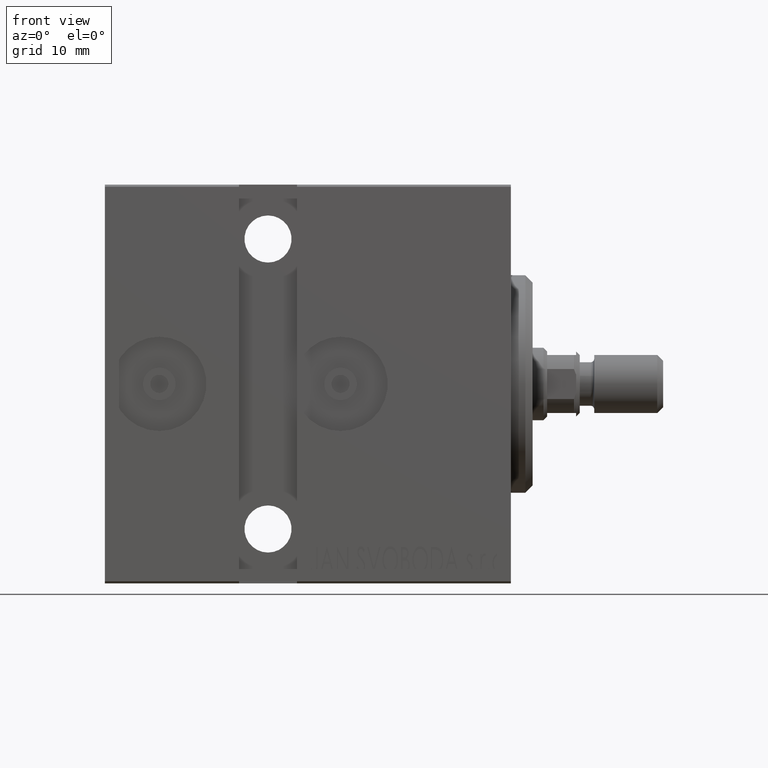
[diagram: clean part render]
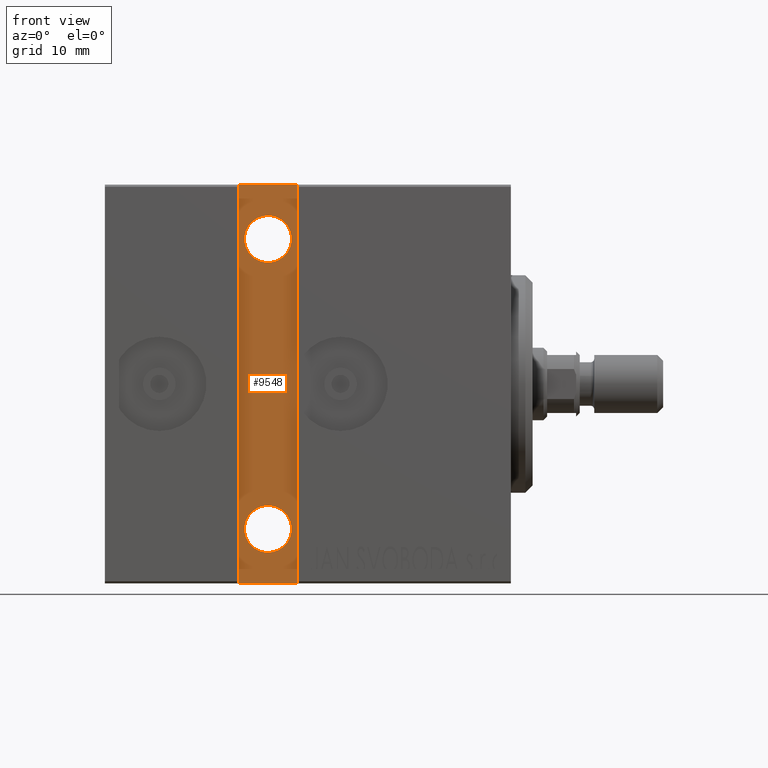
[diagram: same view with one face highlighted and labeled with its STEP entity id]
A machine part, front view. The second image highlights one B-rep face of the part: STEP entity #9548.
In plain terms, the highlighted planar face has unit normal (0, 1, 0).
Its self-contained STEP definition (entity closure, byte-faithful):
#280 = ORIENTED_EDGE ( 'NONE', *, *, #9360, .T. ) ;
#577 = VECTOR ( 'NONE', #40393, 1000.000000000000000 ) ;
#1015 = CARTESIAN_POINT ( 'NONE',  ( 33.50000000000000000, 15.50000000000000000, 16.75000000000000000 ) ) ;
#1501 = DIRECTION ( 'NONE',  ( 0.000000000000000000, -1.000000000000000000, 0.000000000000000000 ) ) ;
#1633 = CARTESIAN_POINT ( 'NONE',  ( 33.50000000000000000, 15.50000000000000000, 20.00000000000000000 ) ) ;
#2653 = LINE ( 'NONE', #12534, #32274 ) ;
#2664 = EDGE_CURVE ( 'NONE', #38430, #18440, #21687, .T. ) ;
#2860 = DIRECTION ( 'NONE',  ( 0.000000000000000000, -1.000000000000000000, 0.000000000000000000 ) ) ;
#3195 = EDGE_CURVE ( 'NONE', #33503, #27709, #39235, .T. ) ;
#3793 = ORIENTED_EDGE ( 'NONE', *, *, #3195, .T. ) ;
#4826 = CIRCLE ( 'NONE', #10444, 3.249999999999999556 ) ;
#5119 = EDGE_LOOP ( 'NONE', ( #8481, #280, #28954, #10003 ) ) ;
#5903 = DIRECTION ( 'NONE',  ( 0.000000000000000000, 0.000000000000000000, -1.000000000000000000 ) ) ;
#7247 = LINE ( 'NONE', #27445, #32682 ) ;
#7807 = AXIS2_PLACEMENT_3D ( 'NONE', #16470, #2860, #43261 ) ;
#8481 = ORIENTED_EDGE ( 'NONE', *, *, #33177, .T. ) ;
#9360 = EDGE_CURVE ( 'NONE', #20142, #40047, #2653, .T. ) ;
#9548 = ADVANCED_FACE ( 'NONE', ( #30091, #36899, #19759 ), #33166, .F. ) ;
#10003 = ORIENTED_EDGE ( 'NONE', *, *, #29694, .T. ) ;
#10444 = AXIS2_PLACEMENT_3D ( 'NONE', #23008, #12272, #5903 ) ;
#10598 = EDGE_CURVE ( 'NONE', #27709, #33503, #17569, .T. ) ;
#10895 = ORIENTED_EDGE ( 'NONE', *, *, #2664, .T. ) ;
#11954 = DIRECTION ( 'NONE',  ( 0.000000000000000000, 0.000000000000000000, -1.000000000000000000 ) ) ;
#12272 = DIRECTION ( 'NONE',  ( 0.000000000000000000, -1.000000000000000000, 0.000000000000000000 ) ) ;
#12534 = CARTESIAN_POINT ( 'NONE',  ( 37.50000000000000000, 15.50000000000000178, 27.50000000000002132 ) ) ;
#12687 = ORIENTED_EDGE ( 'NONE', *, *, #35856, .T. ) ;
#13108 = VECTOR ( 'NONE', #20134, 1000.000000000000000 ) ;
#13391 = CARTESIAN_POINT ( 'NONE',  ( 29.50000000000000000, 15.50000000000000178, -27.50000000000000711 ) ) ;
#13490 = DIRECTION ( 'NONE',  ( 0.000000000000000000, -1.000000000000000000, 0.000000000000000000 ) ) ;
#14377 = DIRECTION ( 'NONE',  ( 0.000000000000000000, -1.000000000000000000, 0.000000000000000000 ) ) ;
#14574 = CARTESIAN_POINT ( 'NONE',  ( 37.50000000000000000, 15.50000000000000355, -27.50000000000000355 ) ) ;
#16179 = AXIS2_PLACEMENT_3D ( 'NONE', #1633, #14377, #11954 ) ;
#16470 = CARTESIAN_POINT ( 'NONE',  ( 0.000000000000000000, 15.50000000000000178, 0.000000000000000000 ) ) ;
#17475 = EDGE_LOOP ( 'NONE', ( #10895, #12687 ) ) ;
#17569 = CIRCLE ( 'NONE', #16179, 3.249999999999999556 ) ;
#18440 = VERTEX_POINT ( 'NONE', #29956 ) ;
#18696 = DIRECTION ( 'NONE',  ( 1.000000000000000000, -0.000000000000000000, -0.000000000000000000 ) ) ;
#19165 = CARTESIAN_POINT ( 'NONE',  ( 33.50000000000000000, 15.50000000000000000, -16.75000000000000000 ) ) ;
#19759 = FACE_OUTER_BOUND ( 'NONE', #5119, .T. ) ;
#19907 = CARTESIAN_POINT ( 'NONE',  ( 37.49999999999999289, 15.50000000000000178, -27.50000000000000711 ) ) ;
#20134 = DIRECTION ( 'NONE',  ( -1.000000000000000000, 0.000000000000000000, 0.000000000000000000 ) ) ;
#20142 = VERTEX_POINT ( 'NONE', #36694 ) ;
#20924 = CARTESIAN_POINT ( 'NONE',  ( 33.50000000000000000, 15.50000000000000000, -20.00000000000000000 ) ) ;
#21199 = CARTESIAN_POINT ( 'NONE',  ( 29.50000000000000000, 15.50000000000000178, -27.50000000000000711 ) ) ;
#21687 = CIRCLE ( 'NONE', #41328, 3.249999999999999556 ) ;
#23008 = CARTESIAN_POINT ( 'NONE',  ( 33.50000000000000000, 15.50000000000000000, -20.00000000000000000 ) ) ;
#25247 = EDGE_LOOP ( 'NONE', ( #34318, #3793 ) ) ;
#27445 = CARTESIAN_POINT ( 'NONE',  ( 37.49999999999999289, 15.50000000000000178, -27.50000000000000711 ) ) ;
#27709 = VERTEX_POINT ( 'NONE', #28580 ) ;
#28580 = CARTESIAN_POINT ( 'NONE',  ( 33.50000000000000000, 15.50000000000000000, 23.25000000000000000 ) ) ;
#28695 = AXIS2_PLACEMENT_3D ( 'NONE', #41682, #1501, #38169 ) ;
#28954 = ORIENTED_EDGE ( 'NONE', *, *, #39804, .T. ) ;
#29694 = EDGE_CURVE ( 'NONE', #32681, #29799, #30461, .T. ) ;
#29799 = VERTEX_POINT ( 'NONE', #21199 ) ;
#29956 = CARTESIAN_POINT ( 'NONE',  ( 33.50000000000000000, 15.50000000000000000, -23.25000000000000000 ) ) ;
#30091 = FACE_BOUND ( 'NONE', #25247, .T. ) ;
#30287 = CARTESIAN_POINT ( 'NONE',  ( 37.50000000000000000, 15.50000000000000178, 27.50000000000002132 ) ) ;
#30461 = LINE ( 'NONE', #19907, #13108 ) ;
#30513 = LINE ( 'NONE', #13391, #577 ) ;
#32274 = VECTOR ( 'NONE', #18696, 1000.000000000000000 ) ;
#32681 = VERTEX_POINT ( 'NONE', #14574 ) ;
#32682 = VECTOR ( 'NONE', #40842, 1000.000000000000000 ) ;
#33166 = PLANE ( 'NONE',  #7807 ) ;
#33177 = EDGE_CURVE ( 'NONE', #29799, #20142, #30513, .T. ) ;
#33503 = VERTEX_POINT ( 'NONE', #1015 ) ;
#34318 = ORIENTED_EDGE ( 'NONE', *, *, #10598, .T. ) ;
#34337 = DIRECTION ( 'NONE',  ( 0.000000000000000000, 0.000000000000000000, -1.000000000000000000 ) ) ;
#35856 = EDGE_CURVE ( 'NONE', #18440, #38430, #4826, .T. ) ;
#36694 = CARTESIAN_POINT ( 'NONE',  ( 29.50000000000000711, 15.50000000000000178, 27.50000000000002132 ) ) ;
#36899 = FACE_BOUND ( 'NONE', #17475, .T. ) ;
#38169 = DIRECTION ( 'NONE',  ( 0.000000000000000000, 0.000000000000000000, -1.000000000000000000 ) ) ;
#38430 = VERTEX_POINT ( 'NONE', #19165 ) ;
#39235 = CIRCLE ( 'NONE', #28695, 3.249999999999999556 ) ;
#39804 = EDGE_CURVE ( 'NONE', #40047, #32681, #7247, .T. ) ;
#40047 = VERTEX_POINT ( 'NONE', #30287 ) ;
#40393 = DIRECTION ( 'NONE',  ( 1.261617073437677259E-16, 0.000000000000000000, 1.000000000000000000 ) ) ;
#40842 = DIRECTION ( 'NONE',  ( -1.261617073437677259E-16, -0.000000000000000000, -1.000000000000000000 ) ) ;
#41328 = AXIS2_PLACEMENT_3D ( 'NONE', #20924, #13490, #34337 ) ;
#41682 = CARTESIAN_POINT ( 'NONE',  ( 33.50000000000000000, 15.50000000000000000, 20.00000000000000000 ) ) ;
#43261 = DIRECTION ( 'NONE',  ( 0.000000000000000000, -0.000000000000000000, -1.000000000000000000 ) ) ;